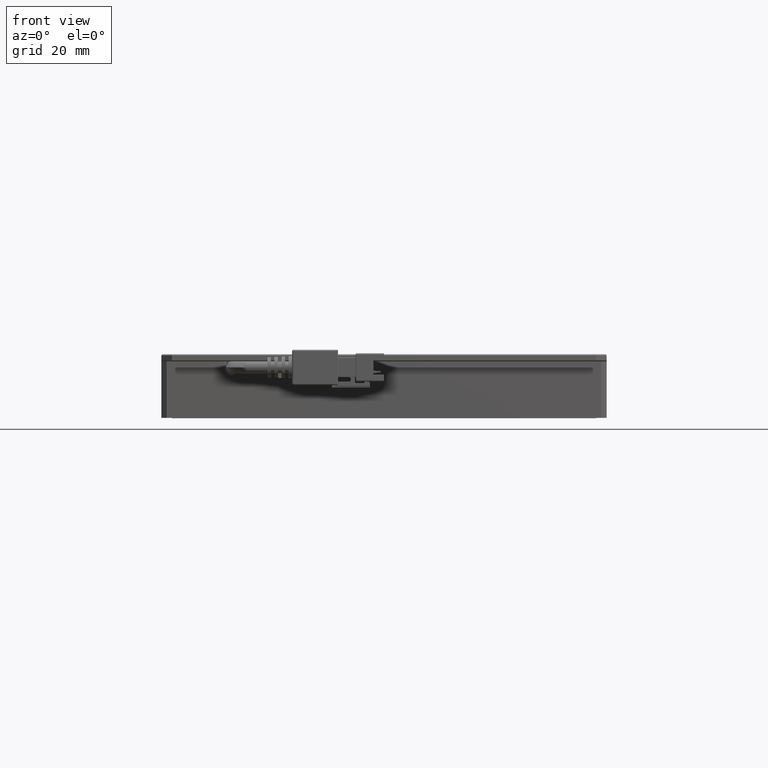
[diagram: clean part render]
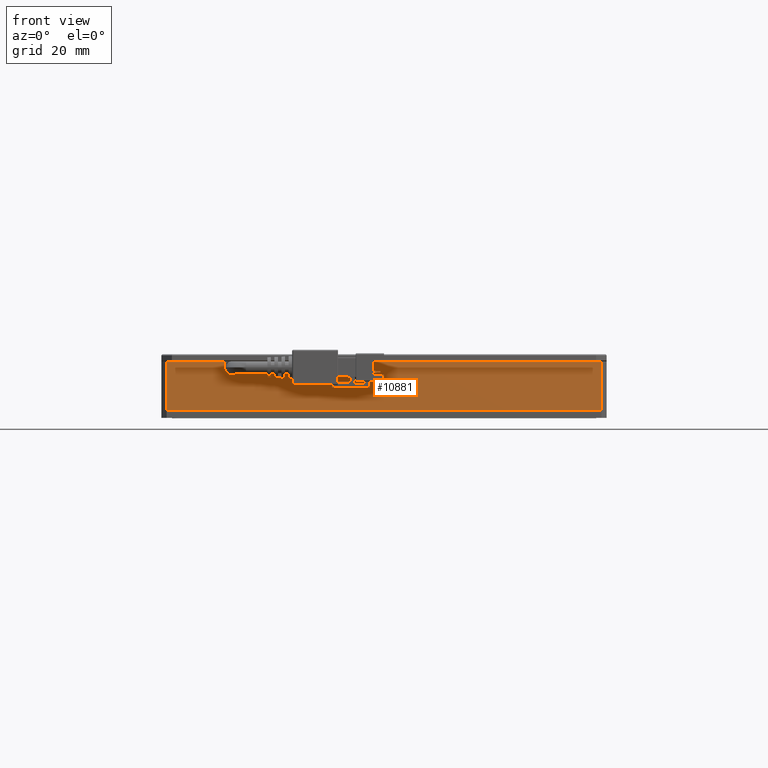
[diagram: same view with one face highlighted and labeled with its STEP entity id]
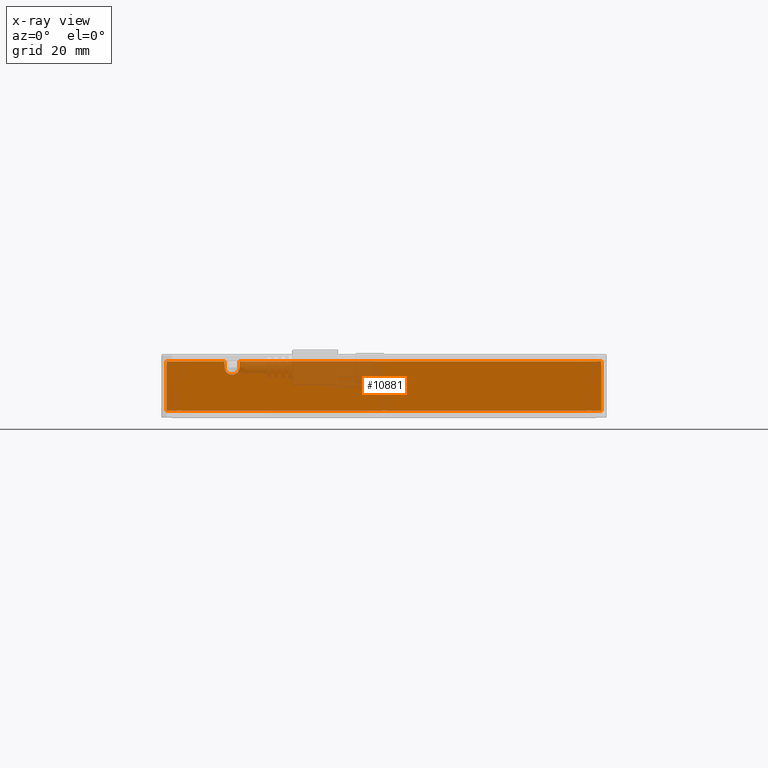
[diagram: x-ray of the same camera — body ghosted, the highlighted face saturated]
A machine part, front view. The second image highlights one B-rep face of the part: STEP entity #10881.
The next image is the same camera in x-ray: the body ghosted, the highlighted face saturated — about 13% of this face is hidden behind the body in this view.
In plain terms, the highlighted planar face has unit normal (0, 1, 0).
Its self-contained STEP definition (entity closure, byte-faithful):
#797 = DIRECTION ( 'NONE',  ( -1.000000000000000000, 0.0000000000000000000, -0.0000000000000000000 ) ) ;
#2776 = CARTESIAN_POINT ( 'NONE',  ( -63.35509736540663500, -51.11034746086289000, 13.99999999998362900 ) ) ;
#6079 = VECTOR ( 'NONE', #797, 1000.000000000000000 ) ;
#6526 = VERTEX_POINT ( 'NONE', #60753 ) ;
#7162 = VERTEX_POINT ( 'NONE', #37716 ) ;
#7178 = CARTESIAN_POINT ( 'NONE',  ( -45.45509736540662300, -51.11034746086289000, 13.99999999998362900 ) ) ;
#8516 = DIRECTION ( 'NONE',  ( 0.0000000000000000000, 1.000000000000000000, 0.0000000000000000000 ) ) ;
#10450 = LINE ( 'NONE', #14467, #28770 ) ;
#10881 = ADVANCED_FACE ( 'NONE', ( #74801 ), #23886, .F. ) ;
#12884 = ORIENTED_EDGE ( 'NONE', *, *, #83819, .F. ) ;
#14027 = ORIENTED_EDGE ( 'NONE', *, *, #26671, .F. ) ;
#14467 = CARTESIAN_POINT ( 'NONE',  ( -61.85509736540663500, -51.11034746086289000, 13.99999999998362900 ) ) ;
#14487 = ORIENTED_EDGE ( 'NONE', *, *, #44607, .F. ) ;
#15062 = LINE ( 'NONE', #2776, #35827 ) ;
#16436 = AXIS2_PLACEMENT_3D ( 'NONE', #55274, #8516, #63116 ) ;
#17241 = VECTOR ( 'NONE', #70863, 1000.000000000000000 ) ;
#20225 = CARTESIAN_POINT ( 'NONE',  ( 61.14490263459333600, -51.11034746086289000, 13.99999999998362900 ) ) ;
#21053 = LINE ( 'NONE', #20225, #80946 ) ;
#23728 = CARTESIAN_POINT ( 'NONE',  ( -45.45509736539951700, -51.11034746090552300, 12.29999999998363000 ) ) ;
#23886 = PLANE ( 'NONE',  #16436 ) ;
#24274 = VECTOR ( 'NONE', #72623, 1000.000000000000000 ) ;
#26671 = EDGE_CURVE ( 'NONE', #70734, #7162, #31234, .T. ) ;
#27235 = DIRECTION ( 'NONE',  ( 0.0000000000000000000, -1.000000000000000000, 0.0000000000000000000 ) ) ;
#27746 = CIRCLE ( 'NONE', #33796, 2.100000000002455900 ) ;
#28732 = DIRECTION ( 'NONE',  ( 1.000000000000000000, 0.0000000000000000000, -0.0000000000000000000 ) ) ;
#28770 = VECTOR ( 'NONE', #46222, 1000.000000000000000 ) ;
#31234 = CIRCLE ( 'NONE', #99006, 2.100000000002455900 ) ;
#31794 = VERTEX_POINT ( 'NONE', #32607 ) ;
#32254 = EDGE_CURVE ( 'NONE', #39285, #48684, #65888, .T. ) ;
#32607 = CARTESIAN_POINT ( 'NONE',  ( -41.25509736540664100, -51.11034746086289000, 13.99999999998362900 ) ) ;
#32729 = CARTESIAN_POINT ( 'NONE',  ( 61.14490263459333600, -51.11034746086289700, 13.99999999998362900 ) ) ;
#33025 = ORIENTED_EDGE ( 'NONE', *, *, #82403, .T. ) ;
#33656 = EDGE_CURVE ( 'NONE', #55421, #63681, #15062, .T. ) ;
#33796 = AXIS2_PLACEMENT_3D ( 'NONE', #88866, #42007, #96738 ) ;
#35827 = VECTOR ( 'NONE', #49540, 1000.000000000000000 ) ;
#37716 = CARTESIAN_POINT ( 'NONE',  ( -43.35509736540662800, -51.11034746091973300, 10.19999999998117300 ) ) ;
#39285 = VERTEX_POINT ( 'NONE', #56373 ) ;
#42007 = DIRECTION ( 'NONE',  ( 0.0000000000000000000, -1.000000000000000000, 0.0000000000000000000 ) ) ;
#44607 = EDGE_CURVE ( 'NONE', #31794, #75051, #83032, .T. ) ;
#46222 = DIRECTION ( 'NONE',  ( -0.0000000000000000000, 0.0000000000000000000, -1.000000000000000000 ) ) ;
#48684 = VERTEX_POINT ( 'NONE', #80528 ) ;
#49540 = DIRECTION ( 'NONE',  ( 1.000000000000000000, 0.0000000000000000000, -0.0000000000000000000 ) ) ;
#50329 = ORIENTED_EDGE ( 'NONE', *, *, #32254, .F. ) ;
#51668 = EDGE_CURVE ( 'NONE', #7162, #6526, #27746, .T. ) ;
#51953 = CARTESIAN_POINT ( 'NONE',  ( -63.35509736540663500, -51.11034746086289000, 13.99999999998362900 ) ) ;
#55116 = ORIENTED_EDGE ( 'NONE', *, *, #60733, .F. ) ;
#55171 = CARTESIAN_POINT ( 'NONE',  ( -41.25509736540664100, -51.11034746086289000, 13.99999999998362900 ) ) ;
#55274 = CARTESIAN_POINT ( 'NONE',  ( -63.35509736540663500, -51.11034746086289000, 13.99999999998362900 ) ) ;
#55421 = VERTEX_POINT ( 'NONE', #75384 ) ;
#56373 = CARTESIAN_POINT ( 'NONE',  ( 61.14490263459336500, -51.11034746086289000, -1.637578961322105900E-011 ) ) ;
#56519 = CARTESIAN_POINT ( 'NONE',  ( -45.45509736540662300, -51.11034746086289000, 13.99999999998362900 ) ) ;
#58132 = EDGE_CURVE ( 'NONE', #63681, #70734, #86697, .T. ) ;
#60733 = EDGE_CURVE ( 'NONE', #75051, #39285, #21053, .T. ) ;
#60753 = CARTESIAN_POINT ( 'NONE',  ( -41.25509736538599300, -51.11034746091973300, 12.29999999998362800 ) ) ;
#62165 = VECTOR ( 'NONE', #28732, 1000.000000000000000 ) ;
#63116 = DIRECTION ( 'NONE',  ( 0.0000000000000000000, -0.0000000000000000000, 1.000000000000000000 ) ) ;
#63681 = VERTEX_POINT ( 'NONE', #7178 ) ;
#65888 = LINE ( 'NONE', #71405, #6079 ) ;
#70734 = VERTEX_POINT ( 'NONE', #23728 ) ;
#70863 = DIRECTION ( 'NONE',  ( 0.0000000000000000000, -0.0000000000000000000, 1.000000000000000000 ) ) ;
#71405 = CARTESIAN_POINT ( 'NONE',  ( -63.35509736540663500, -51.11034746086289000, -1.637058544279312900E-011 ) ) ;
#72623 = DIRECTION ( 'NONE',  ( -0.0000000000000000000, 0.0000000000000000000, -1.000000000000000000 ) ) ;
#73984 = CARTESIAN_POINT ( 'NONE',  ( -43.35509736540662800, -51.11034746091973300, 12.29999999998363000 ) ) ;
#74801 = FACE_OUTER_BOUND ( 'NONE', #88141, .T. ) ;
#75051 = VERTEX_POINT ( 'NONE', #32729 ) ;
#75384 = CARTESIAN_POINT ( 'NONE',  ( -61.85509736540662800, -51.11034746086289000, 13.99999999998362900 ) ) ;
#80528 = CARTESIAN_POINT ( 'NONE',  ( -61.85509736540662800, -51.11034746086289000, -1.637232016626910500E-011 ) ) ;
#80737 = ORIENTED_EDGE ( 'NONE', *, *, #58132, .F. ) ;
#80946 = VECTOR ( 'NONE', #82772, 1000.000000000000000 ) ;
#81895 = DIRECTION ( 'NONE',  ( 0.0000000000000000000, 0.0000000000000000000, -1.000000000000000000 ) ) ;
#82403 = EDGE_CURVE ( 'NONE', #55421, #48684, #10450, .T. ) ;
#82772 = DIRECTION ( 'NONE',  ( -0.0000000000000000000, 0.0000000000000000000, -1.000000000000000000 ) ) ;
#83032 = LINE ( 'NONE', #51953, #62165 ) ;
#83819 = EDGE_CURVE ( 'NONE', #6526, #31794, #100414, .T. ) ;
#86697 = LINE ( 'NONE', #56519, #24274 ) ;
#86933 = ORIENTED_EDGE ( 'NONE', *, *, #51668, .F. ) ;
#87037 = ORIENTED_EDGE ( 'NONE', *, *, #33656, .F. ) ;
#88141 = EDGE_LOOP ( 'NONE', ( #14027, #80737, #87037, #33025, #50329, #55116, #14487, #12884, #86933 ) ) ;
#88866 = CARTESIAN_POINT ( 'NONE',  ( -43.35509736540662800, -51.11034746091973300, 12.29999999998363000 ) ) ;
#96738 = DIRECTION ( 'NONE',  ( 0.0000000000000000000, 0.0000000000000000000, -1.000000000000000000 ) ) ;
#99006 = AXIS2_PLACEMENT_3D ( 'NONE', #73984, #27235, #81895 ) ;
#100414 = LINE ( 'NONE', #55171, #17241 ) ;